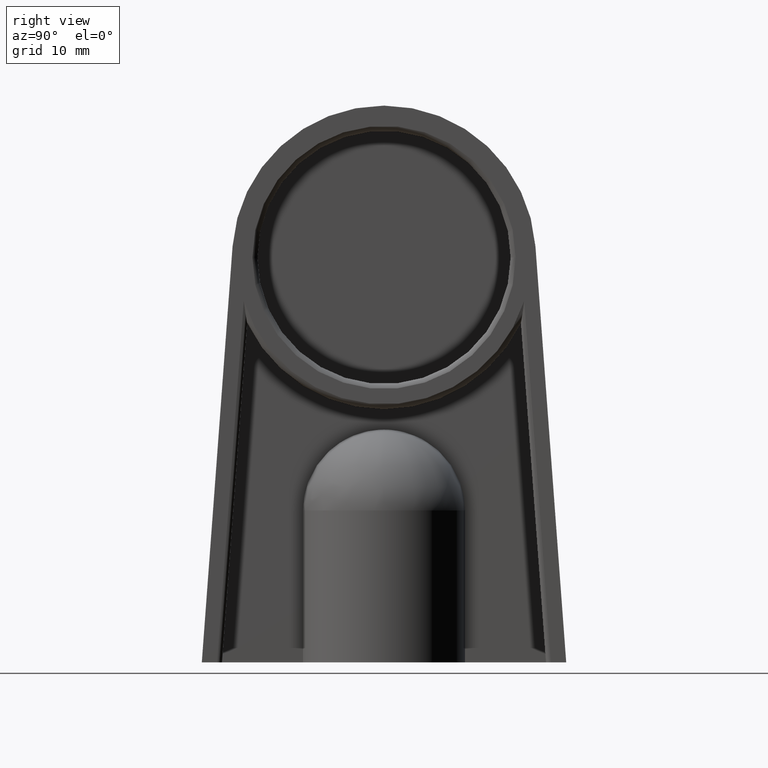
[diagram: clean part render]
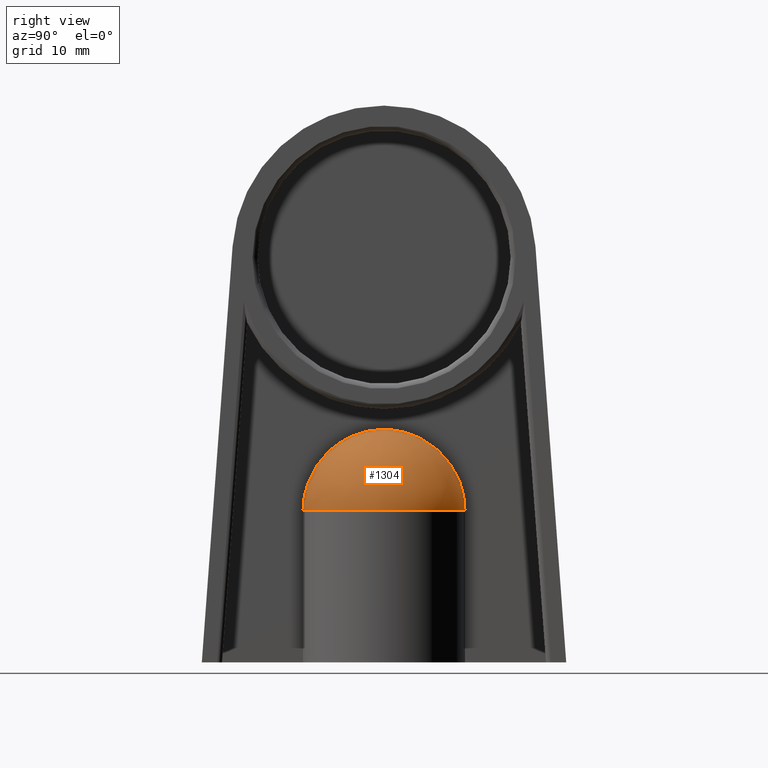
[diagram: same view with one face highlighted and labeled with its STEP entity id]
A machine part, right view. The second image highlights one B-rep face of the part: STEP entity #1304.
In plain terms, the highlighted face is a freeform B-spline surface patch.
Its self-contained STEP definition (entity closure, byte-faithful):
#1049=CARTESIAN_POINT('',(4.839212E-015,-7.999999999999999,15.0));
#1050=VERTEX_POINT('',#1049);
#1057=CARTESIAN_POINT('',(1.735918E-047,1.408344E-015,23.0));
#1058=VERTEX_POINT('',#1057);
#1059=CARTESIAN_POINT('',(1.735918E-047,1.408344E-015,23.0));
#1060=CARTESIAN_POINT('',(-1.444674E-017,-0.235933228766618,23.0));
#1061=CARTESIAN_POINT('',(-5.284360E-017,-0.863001493992146,22.972224076223242));
#1062=CARTESIAN_POINT('',(-1.454947E-016,-2.376109016898513,22.725517590091513));
#1063=CARTESIAN_POINT('',(-2.703129E-016,-4.414544804670387,21.853812521275259));
#1064=CARTESIAN_POINT('',(-3.930465E-016,-6.418936653335783,20.020826234842332));
#1065=CARTESIAN_POINT('',(-4.620668E-016,-7.546123056102462,17.942043850855129));
#1066=CARTESIAN_POINT('',(-4.865356E-016,-7.945729469165522,16.210977359825478));
#1067=CARTESIAN_POINT('',(-4.898587E-016,-7.999999999999999,15.327043926945123));
#1068=CARTESIAN_POINT('',(-4.898587E-016,-7.999999999999999,15.0));
#1069=B_SPLINE_CURVE_WITH_KNOTS('',3,(#1059,#1060,#1061,#1062,#1063,#1064,#1065,#1066,#1067,#1068),.UNSPECIFIED.,.F.,.U.,(4,1,1,1,1,1,1,4),(0.0,0.708022473487354,1.880800532772505,4.587017613098299,7.264870905812752,9.915573074247492,11.584533698817506,12.566275242682220),.UNSPECIFIED.);
#1070=EDGE_CURVE('',#1058,#1050,#1069,.T.);
#1072=CARTESIAN_POINT('',(4.898587E-016,8.000000000000002,15.0));
#1073=VERTEX_POINT('',#1072);
#1074=CARTESIAN_POINT('',(1.735918E-047,1.408344E-015,23.0));
#1075=CARTESIAN_POINT('',(3.192881E-017,0.521437045145683,23.0));
#1076=CARTESIAN_POINT('',(1.129861E-016,1.845203027089857,22.870300051576322));
#1077=CARTESIAN_POINT('',(2.249208E-016,3.673234618763290,22.211320699448365));
#1078=CARTESIAN_POINT('',(3.285916E-016,5.366308150762056,21.032099298314364));
#1079=CARTESIAN_POINT('',(3.901559E-016,6.371729208637647,19.904096816385618));
#1080=CARTESIAN_POINT('',(4.464045E-016,7.290338484282587,18.436775413166060));
#1081=CARTESIAN_POINT('',(4.814132E-016,7.862074910433493,16.904664778834459));
#1082=CARTESIAN_POINT('',(4.898587E-016,8.000000000000002,15.536480270114765));
#1083=CARTESIAN_POINT('',(4.898587E-016,8.000000000000002,15.0));
#1084=B_SPLINE_CURVE_WITH_KNOTS('',3,(#1074,#1075,#1076,#1077,#1078,#1079,#1080,#1081,#1082,#1083),.UNSPECIFIED.,.F.,.U.,(4,1,1,1,1,1,1,4),(0.0,1.566797559980745,3.966762403885307,5.766736036813657,7.716707472486053,8.466696486206210,10.954050738267860,12.566199187435556),.UNSPECIFIED.);
#1085=EDGE_CURVE('',#1058,#1073,#1084,.T.);
#1112=CARTESIAN_POINT('',(1.735918E-047,1.408344E-015,23.0));
#1113=CARTESIAN_POINT('',(3.200970E-017,0.522758081757658,23.0));
#1114=CARTESIAN_POINT('',(9.622424E-017,1.571461168224656,22.896568742437349));
#1115=CARTESIAN_POINT('',(2.190964E-016,3.578115649416957,22.288880856349415));
#1116=CARTESIAN_POINT('',(3.554855E-016,5.805518473030061,20.805518473030059));
#1117=CARTESIAN_POINT('',(4.463152E-016,7.288880856349407,18.578115649416947));
#1118=CARTESIAN_POINT('',(4.835254E-016,7.896568742437351,16.571461168224662));
#1119=CARTESIAN_POINT('',(4.898587E-016,8.000000000000002,15.522758081757656));
#1120=CARTESIAN_POINT('',(4.898587E-016,8.000000000000002,15.0));
#1121=CARTESIAN_POINT('',(1.735918E-047,1.408344E-015,23.0));
#1122=CARTESIAN_POINT('',(0.034159501505368,0.522758081757658,23.0));
#1123=CARTESIAN_POINT('',(0.102686753232221,1.571461168224656,22.896568742437349));
#1124=CARTESIAN_POINT('',(0.233811109149533,3.578115649416957,22.288880856349415));
#1125=CARTESIAN_POINT('',(0.379360212571229,5.805518473030061,20.805518473030059));
#1126=CARTESIAN_POINT('',(0.476290171828165,7.288880856349405,18.578115649416947));
#1127=CARTESIAN_POINT('',(0.515999391033003,7.896568742437353,16.571461168224662));
#1128=CARTESIAN_POINT('',(0.522758081757657,8.0,15.522758081757656));
#1129=CARTESIAN_POINT('',(0.522758081757657,8.000000000000002,15.0));
#1130=CARTESIAN_POINT('',(1.735918E-047,1.408344E-015,23.000000000000004));
#1131=CARTESIAN_POINT('',(0.102667821524779,0.516018481945475,23.000000000000004));
#1132=CARTESIAN_POINT('',(0.308629364867866,1.551201281742156,22.896568742437349));
#1133=CARTESIAN_POINT('',(0.702729143190292,3.531985195579310,22.288880856349422));
#1134=CARTESIAN_POINT('',(1.140183108109601,5.730671478644247,20.805518473030059));
#1135=CARTESIAN_POINT('',(1.431510186048116,7.194909779163363,18.578115649416951));
#1136=CARTESIAN_POINT('',(1.550857918027458,7.794763117482734,16.571461168224666));
#1137=CARTESIAN_POINT('',(1.571171447864856,7.896860899182702,15.522758081757658));
#1138=CARTESIAN_POINT('',(1.571171447864856,7.896860899182700,15.000000000000002));
#1139=CARTESIAN_POINT('',(1.735918E-047,1.408344E-015,22.999999999999993));
#1140=CARTESIAN_POINT('',(0.201333627445030,0.486078781352786,22.999999999999996));
#1141=CARTESIAN_POINT('',(0.605228285182872,1.461199656685512,22.896568742437349));
#1142=CARTESIAN_POINT('',(1.378065740643889,3.327057304518561,22.288880856349408));
#1143=CARTESIAN_POINT('',(2.235921613003646,5.398174495941587,20.805518473030055));
#1144=CARTESIAN_POINT('',(2.807219771503735,6.777456815526446,18.578115649416947));
#1145=CARTESIAN_POINT('',(3.041263033061971,7.342506304803236,16.571461168224662));
#1146=CARTESIAN_POINT('',(3.081098266610675,7.438680312215609,15.522758081757651));
#1147=CARTESIAN_POINT('',(3.081098266610675,7.438680312215609,14.999999999999998));
#1148=CARTESIAN_POINT('',(1.735918E-047,1.408344E-015,23.000000000000004));
#1149=CARTESIAN_POINT('',(0.292302810836763,0.437459345787953,23.000000000000004));
#1150=CARTESIAN_POINT('',(0.878690416508635,1.315044948270013,22.896568742437349));
#1151=CARTESIAN_POINT('',(2.000721362942887,2.994272467074392,22.288880856349419));
#1152=CARTESIAN_POINT('',(3.246184855384280,4.858228694681305,20.805518473030055));
#1153=CARTESIAN_POINT('',(4.075614393184848,6.099549987298183,18.578115649416944));
#1154=CARTESIAN_POINT('',(4.415406131301493,6.608081092541889,16.571461168224658));
#1155=CARTESIAN_POINT('',(4.473240239216749,6.694635412496631,15.522758081757656));
#1156=CARTESIAN_POINT('',(4.473240239216749,6.694635412496631,15.0));
#1157=CARTESIAN_POINT('',(1.735918E-047,1.408344E-015,23.000000000000004));
#1158=CARTESIAN_POINT('',(0.372028104977805,0.372028592897775,22.999999999999996));
#1159=CARTESIAN_POINT('',(1.118352333253552,1.118353799987995,22.896568742437346));
#1160=CARTESIAN_POINT('',(2.546416078290542,2.546419417950196,22.288880856349415));
#1161=CARTESIAN_POINT('',(4.131578470624728,4.131583889246622,20.805518473030059));
#1162=CARTESIAN_POINT('',(5.187234070641804,5.187240873770518,18.578115649416951));
#1163=CARTESIAN_POINT('',(5.619703659479409,5.619711029797923,16.571461168224666));
#1164=CARTESIAN_POINT('',(5.693311961463234,5.693319428320050,15.522758081757658));
#1165=CARTESIAN_POINT('',(5.693311961463234,5.693319428320050,15.0));
#1166=CARTESIAN_POINT('',(1.735918E-047,1.408344E-015,22.999999999999996));
#1167=CARTESIAN_POINT('',(0.437459476437479,0.292300989806420,23.000000000000004));
#1168=CARTESIAN_POINT('',(1.315045341015080,0.878684942315942,22.896568742437349));
#1169=CARTESIAN_POINT('',(2.994273361329561,2.000708898559454,22.288880856349415));
#1170=CARTESIAN_POINT('',(4.858230145616768,3.246164631832173,20.805518473030059));
#1171=CARTESIAN_POINT('',(6.099551808960763,4.075589002332595,18.578115649416944));
#1172=CARTESIAN_POINT('',(6.608083066079944,4.415378623565507,16.571461168224662));
#1173=CARTESIAN_POINT('',(6.694637411884591,4.473212371177466,15.522758081757658));
#1174=CARTESIAN_POINT('',(6.694637411884591,4.473212371177466,14.999999999999998));
#1175=CARTESIAN_POINT('',(1.735918E-047,1.408344E-015,23.0));
#1176=CARTESIAN_POINT('',(0.486078746674645,0.201340423646443,22.999999999999996));
#1177=CARTESIAN_POINT('',(1.461199552439680,0.605248715219217,22.896568742437346));
#1178=CARTESIAN_POINT('',(3.327057067157532,1.378112258517981,22.288880856349415));
#1179=CARTESIAN_POINT('',(5.398174110821609,2.235997088590192,20.805518473030055));
#1180=CARTESIAN_POINT('',(6.777456332004832,2.807314531784050,18.578115649416944));
#1181=CARTESIAN_POINT('',(7.342505780969504,3.041365693687423,16.571461168224658));
#1182=CARTESIAN_POINT('',(7.438679781520568,3.081202271911004,15.522758081757651));
#1183=CARTESIAN_POINT('',(7.438679781520568,3.081202271911004,15.0));
#1184=CARTESIAN_POINT('',(1.735918E-047,1.408344E-015,22.999999999999996));
#1185=CARTESIAN_POINT('',(0.516018490008507,0.102642457749480,22.999999999999996));
#1186=CARTESIAN_POINT('',(1.551201305980410,0.308553118915189,22.896568742437349));
#1187=CARTESIAN_POINT('',(3.531985250768249,0.702555536077370,22.288880856349415));
#1188=CARTESIAN_POINT('',(5.730671568188701,1.139901429315546,20.805518473030055));
#1189=CARTESIAN_POINT('',(7.194909891587236,1.431156535779122,18.578115649416947));
#1190=CARTESIAN_POINT('',(7.794763239279595,1.550474783261651,16.571461168224662));
#1191=CARTESIAN_POINT('',(7.896861022574893,1.570783294702840,15.522758081757654));
#1192=CARTESIAN_POINT('',(7.896861022574893,1.570783294702840,14.999999999999996));
#1193=CARTESIAN_POINT('',(1.735918E-047,1.408344E-015,23.000000000000007));
#1194=CARTESIAN_POINT('',(0.526127884089756,3.954551E-010,23.000000000000007));
#1195=CARTESIAN_POINT('',(1.581591118758718,1.188773E-009,22.896568742437353));
#1196=CARTESIAN_POINT('',(3.601180892941043,2.706758E-009,22.288880856349415));
#1197=CARTESIAN_POINT('',(5.842941997165132,4.391733E-009,20.805518473030062));
#1198=CARTESIAN_POINT('',(7.335866428768551,5.513861E-009,18.578115649416947));
#1199=CARTESIAN_POINT('',(7.947471591560940,5.973561E-009,16.571461168224662));
#1200=CARTESIAN_POINT('',(8.051569587534928,6.051805E-009,15.522758081757660));
#1201=CARTESIAN_POINT('',(8.051569587534928,6.051805E-009,15.000000000000004));
#1202=CARTESIAN_POINT('',(1.735918E-047,1.408344E-015,23.0));
#1203=CARTESIAN_POINT('',(0.516018464178410,-0.102642459331291,23.0));
#1204=CARTESIAN_POINT('',(1.551201228332650,-0.308553123670269,22.896568742437346));
#1205=CARTESIAN_POINT('',(3.531985073969310,-0.702555546904387,22.288880856349415));
#1206=CARTESIAN_POINT('',(5.730671281331143,-1.139901446882460,20.805518473030055));
#1207=CARTESIAN_POINT('',(7.194909531434984,-1.431156557834543,18.578115649416951));
#1208=CARTESIAN_POINT('',(7.794762849100766,-1.550474807155874,16.571461168224666));
#1209=CARTESIAN_POINT('',(7.896860627285400,-1.570783318910036,15.522758081757656));
#1210=CARTESIAN_POINT('',(7.896860627285400,-1.570783318910036,15.0));
#1211=CARTESIAN_POINT('',(1.735918E-047,1.408344E-015,22.999999999999996));
#1212=CARTESIAN_POINT('',(0.486078849995033,-0.201340418110092,23.0));
#1213=CARTESIAN_POINT('',(1.461199863030722,-0.605248698576419,22.896568742437346));
#1214=CARTESIAN_POINT('',(3.327057774353289,-1.378112220623407,22.288880856349412));
#1215=CARTESIAN_POINT('',(5.398175258251836,-2.235997027105976,20.805518473030059));
#1216=CARTESIAN_POINT('',(6.777457772613836,-2.807314454590060,18.578115649416944));
#1217=CARTESIAN_POINT('',(7.342507341684829,-3.041365610057626,16.571461168224658));
#1218=CARTESIAN_POINT('',(7.438681362678539,-3.081202187185801,15.522758081757654));
#1219=CARTESIAN_POINT('',(7.438681362678539,-3.081202187185801,14.999999999999996));
#1220=CARTESIAN_POINT('',(1.735918E-047,1.408344E-015,23.0));
#1221=CARTESIAN_POINT('',(0.437459088986023,-0.292301010369995,23.0));
#1222=CARTESIAN_POINT('',(1.315044176298667,-0.878685004132034,22.896568742437353));
#1223=CARTESIAN_POINT('',(2.994270709345467,-2.000709039310712,22.288880856349419));
#1224=CARTESIAN_POINT('',(4.858225842753426,-3.246164860202105,20.805518473030059));
#1225=CARTESIAN_POINT('',(6.099546406676998,-4.075589289053111,18.578115649416951));
#1226=CARTESIAN_POINT('',(6.608077213397483,-4.415378934190456,16.571461168224666));
#1227=CARTESIAN_POINT('',(6.694631482542213,-4.473212685871060,15.522758081757658));
#1228=CARTESIAN_POINT('',(6.694631482542213,-4.473212685871060,15.000000000000002));
#1229=CARTESIAN_POINT('',(1.735918E-047,1.408344E-015,23.0));
#1230=CARTESIAN_POINT('',(0.372029551463242,-0.372028516179809,23.0));
#1231=CARTESIAN_POINT('',(1.118356681528162,-1.118353569366402,22.896568742437353));
#1232=CARTESIAN_POINT('',(2.546425979031168,-2.546418892839719,22.288880856349412));
#1233=CARTESIAN_POINT('',(4.131594534647873,-4.131583037251084,20.805518473030062));
#1234=CARTESIAN_POINT('',(5.187254239167888,-5.187239804082424,18.578115649416944));
#1235=CARTESIAN_POINT('',(5.619725509493949,-5.619709870927903,16.571461168224666));
#1236=CARTESIAN_POINT('',(5.693334097674796,-5.693318254270851,15.522758081757658));
#1237=CARTESIAN_POINT('',(5.693334097674796,-5.693318254270851,15.0));
#1238=CARTESIAN_POINT('',(1.735918E-047,1.408344E-015,23.0));
#1239=CARTESIAN_POINT('',(0.292297412346474,-0.437459632096224,23.000000000000004));
#1240=CARTESIAN_POINT('',(0.878674188126612,-1.315045808940272,22.896568742437346));
#1241=CARTESIAN_POINT('',(2.000684411964488,-2.994274426765019,22.288880856349415));
#1242=CARTESIAN_POINT('',(3.246124902155064,-4.858231874293496,20.805518473030059));
#1243=CARTESIAN_POINT('',(4.075539121364297,-6.099553979330001,18.578115649416951));
#1244=CARTESIAN_POINT('',(4.415324583925829,-6.608085417396997,16.571461168224658));
#1245=CARTESIAN_POINT('',(4.473157623712901,-6.694639793999791,15.522758081757654));
#1246=CARTESIAN_POINT('',(4.473157623712901,-6.694639793999791,14.999999999999998));
#1247=CARTESIAN_POINT('',(1.735918E-047,1.408344E-015,23.0));
#1248=CARTESIAN_POINT('',(0.201353774920752,-0.486077712837651,22.999999999999996));
#1249=CARTESIAN_POINT('',(0.605288850436360,-1.461196444626058,22.896568742437353));
#1250=CARTESIAN_POINT('',(1.378203643816871,-3.327049990866510,22.288880856349415));
#1251=CARTESIAN_POINT('',(2.236145361897392,-5.398162629488342,20.805518473030062));
#1252=CARTESIAN_POINT('',(2.807500690259882,-6.777441917087261,18.578115649416947));
#1253=CARTESIAN_POINT('',(3.041567372550114,-7.342490164252783,16.571461168224666));
#1254=CARTESIAN_POINT('',(3.081406592414522,-7.438663960252137,15.522758081757660));
#1255=CARTESIAN_POINT('',(3.081406592414522,-7.438663960252137,15.000000000000004));
#1256=CARTESIAN_POINT('',(1.735918E-047,1.408344E-015,23.000000000000007));
#1257=CARTESIAN_POINT('',(0.119032969981602,-0.511037695766227,23.000000000000007));
#1258=CARTESIAN_POINT('',(0.357824578121499,-1.536228558524570,22.896568742437353));
#1259=CARTESIAN_POINT('',(0.814743468442818,-3.497893271233661,22.288880856349422));
#1260=CARTESIAN_POINT('',(1.321927159508135,-5.675357085270171,20.805518473030062));
#1261=CARTESIAN_POINT('',(1.659691483403071,-7.125462058892063,18.578115649416951));
#1262=CARTESIAN_POINT('',(1.798063124946477,-7.719525408438522,16.571461168224658));
#1263=CARTESIAN_POINT('',(1.821614611200346,-7.820637707567975,15.522758081757656));
#1264=CARTESIAN_POINT('',(1.821614611200346,-7.820637707567975,15.0));
#1265=CARTESIAN_POINT('',(1.735918E-047,1.408344E-015,23.0));
#1266=CARTESIAN_POINT('',(0.051327909782116,-0.521075811942893,23.0));
#1267=CARTESIAN_POINT('',(0.154296642908959,-1.566404103053156,22.896568742437353));
#1268=CARTESIAN_POINT('',(0.351323496761148,-3.566601038431882,22.288880856349415));
#1269=CARTESIAN_POINT('',(0.570024909840104,-5.786835933578187,20.805518473030059));
#1270=CARTESIAN_POINT('',(0.715671420610827,-7.265424759397623,18.578115649416951));
#1271=CARTESIAN_POINT('',(0.775338310671969,-7.871157065986683,16.571461168224666));
#1272=CARTESIAN_POINT('',(0.785493888255727,-7.974255474974489,15.522758081757658));
#1273=CARTESIAN_POINT('',(0.785493888255727,-7.974255474974489,15.000000000000004));
#1274=CARTESIAN_POINT('',(1.735918E-047,1.408344E-015,23.000000000000004));
#1275=CARTESIAN_POINT('',(0.017100348871807,-0.522758081757655,23.0));
#1276=CARTESIAN_POINT('',(0.051405296547088,-1.571461168224654,22.896568742437349));
#1277=CARTESIAN_POINT('',(0.117046542260955,-3.578115649416954,22.288880856349415));
#1278=CARTESIAN_POINT('',(0.189908859824302,-5.805518473030061,20.805518473030059));
#1279=CARTESIAN_POINT('',(0.238432288047140,-7.288880856349405,18.578115649416947));
#1280=CARTESIAN_POINT('',(0.258310842238661,-7.896568742437350,16.571461168224662));
#1281=CARTESIAN_POINT('',(0.261694263079567,-7.999999999999999,15.522758081757656));
#1282=CARTESIAN_POINT('',(0.261694263079567,-7.999999999999999,15.0));
#1283=CARTESIAN_POINT('',(1.735918E-047,1.408344E-015,23.0));
#1284=CARTESIAN_POINT('',(2.641609E-016,-0.522758081757655,23.0));
#1285=CARTESIAN_POINT('',(7.940932E-016,-1.571461168224654,22.896568742437349));
#1286=CARTESIAN_POINT('',(1.808099E-015,-3.578115649416954,22.288880856349415));
#1287=CARTESIAN_POINT('',(2.933654E-015,-5.805518473030061,20.805518473030059));
#1288=CARTESIAN_POINT('',(3.683229E-015,-7.288880856349405,18.578115649416947));
#1289=CARTESIAN_POINT('',(3.990306E-015,-7.896568742437351,16.571461168224662));
#1290=CARTESIAN_POINT('',(4.042572E-015,-7.999999999999999,15.522758081757656));
#1291=CARTESIAN_POINT('',(4.042572E-015,-7.999999999999999,15.0));
#1292=B_SPLINE_SURFACE_WITH_KNOTS('',3,3,((#1112,#1121,#1130,#1139,#1148,#1157,#1166,#1175,#1184,#1193,#1202,#1211,#1220,#1229,#1238,#1247,#1256,#1265,#1274,#1283),(#1113,#1122,#1131,#1140,#1149,#1158,#1167,#1176,#1185,#1194,#1203,#1212,#1221,#1230,#1239,#1248,#1257,#1266,#1275,#1284),(#1114,#1123,#1132,#1141,#1150,#1159,#1168,#1177,#1186,#1195,#1204,#1213,#1222,#1231,#1240,#1249,#1258,#1267,#1276,#1285),(#1115,#1124,#1133,#1142,#1151,#1160,#1169,#1178,#1187,#1196,#1205,#1214,#1223,#1232,#1241,#1250,#1259,#1268,#1277,#1286),(#1116,#1125,#1134,#1143,#1152,#1161,#1170,#1179,#1188,#1197,#1206,#1215,#1224,#1233,#1242,#1251,#1260,#1269,#1278,#1287),(#1117,#1126,#1135,#1144,#1153,#1162,#1171,#1180,#1189,#1198,#1207,#1216,#1225,#1234,#1243,#1252,#1261,#1270,#1279,#1288),(#1118,#1127,#1136,#1145,#1154,#1163,#1172,#1181,#1190,#1199,#1208,#1217,#1226,#1235,#1244,#1253,#1262,#1271,#1280,#1289),(#1119,#1128,#1137,#1146,#1155,#1164,#1173,#1182,#1191,#1200,#1209,#1218,#1227,#1236,#1245,#1254,#1263,#1272,#1281,#1290),(#1120,#1129,#1138,#1147,#1156,#1165,#1174,#1183,#1192,#1201,#1210,#1219,#1228,#1237,#1246,#1255,#1264,#1273,#1282,#1291)),.UNSPECIFIED.,.F.,.F.,.U.,(4,1,1,1,1,1,4),(4,1,1,1,1,1,1,1,1,1,1,1,1,1,1,1,1,4),(0.0,1.568274245272969,3.136548490545939,6.257993642803991,9.379438795062045,10.947713040335012,12.515987285607983),(0.0,0.938622295632562,1.877244591265123,2.815866886897684,3.754489182530246,4.693111478162807,5.631733773795369,6.570356069427930,7.508978365060493,8.447600660693054,9.386222956325614,10.324845251958177,11.263467547590739,12.202089843223302,13.140712138855863,14.079334434488427,14.549211569892488,15.019088705296550),.UNSPECIFIED.);
#1293=CARTESIAN_POINT('',(1.026342E-047,9.184851E-016,15.0));
#1294=DIRECTION('',(-6.842278E-049,-6.123234E-017,-1.0));
#1295=DIRECTION('',(6.123234E-017,1.0,-6.123234E-017));
#1296=AXIS2_PLACEMENT_3D('',#1293,#1294,#1295);
#1297=CIRCLE('',#1296,8.0);
#1298=EDGE_CURVE('',#1073,#1050,#1297,.T.);
#1299=ORIENTED_EDGE('',*,*,#1298,.F.);
#1300=ORIENTED_EDGE('',*,*,#1085,.F.);
#1301=ORIENTED_EDGE('',*,*,#1070,.T.);
#1302=EDGE_LOOP('',(#1299,#1300,#1301));
#1303=FACE_OUTER_BOUND('',#1302,.T.);
#1304=ADVANCED_FACE('',(#1303),#1292,.F.);